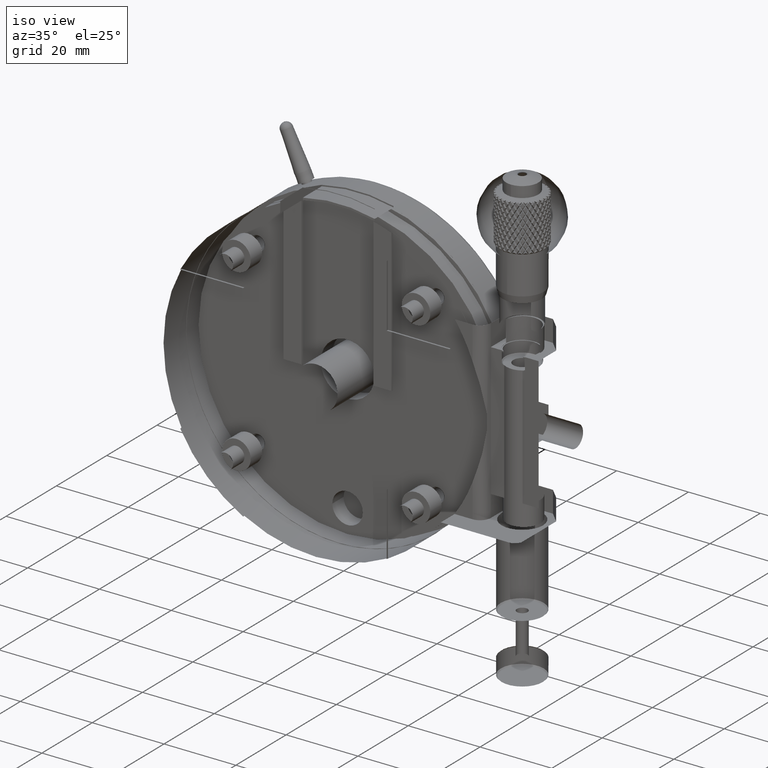
[diagram: clean part render]
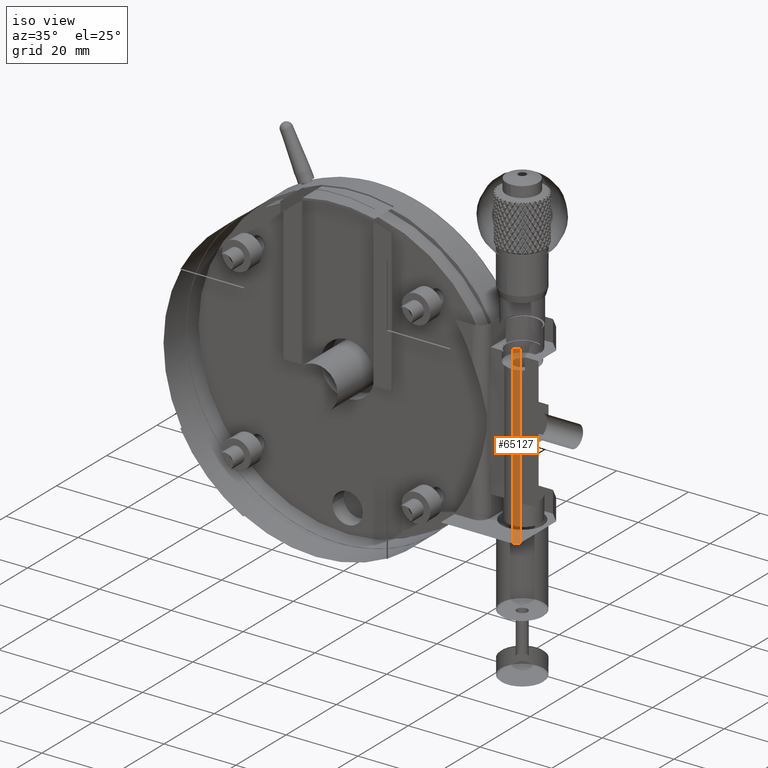
[diagram: same view with one face highlighted and labeled with its STEP entity id]
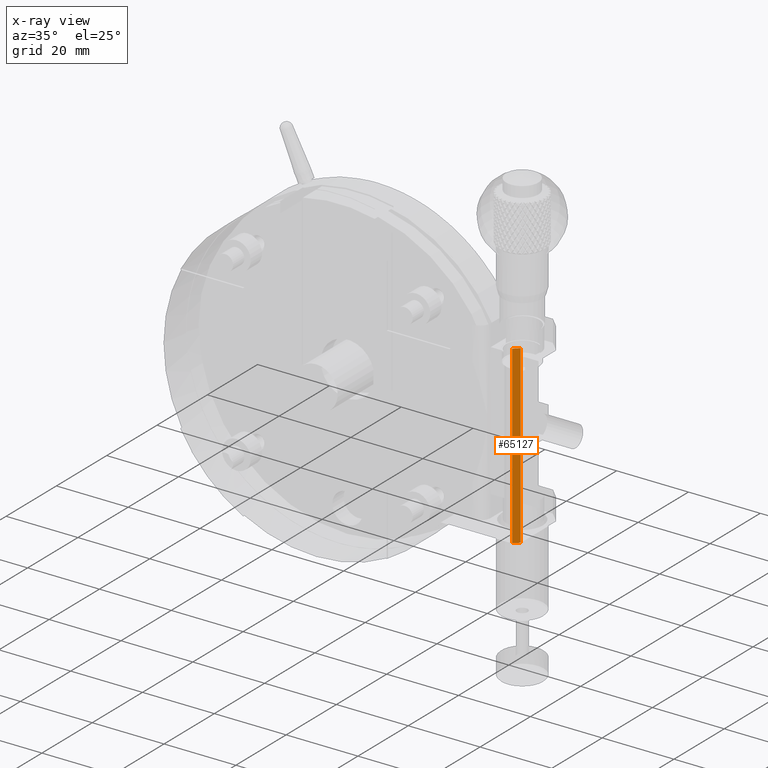
[diagram: x-ray of the same camera — body ghosted, the highlighted face saturated]
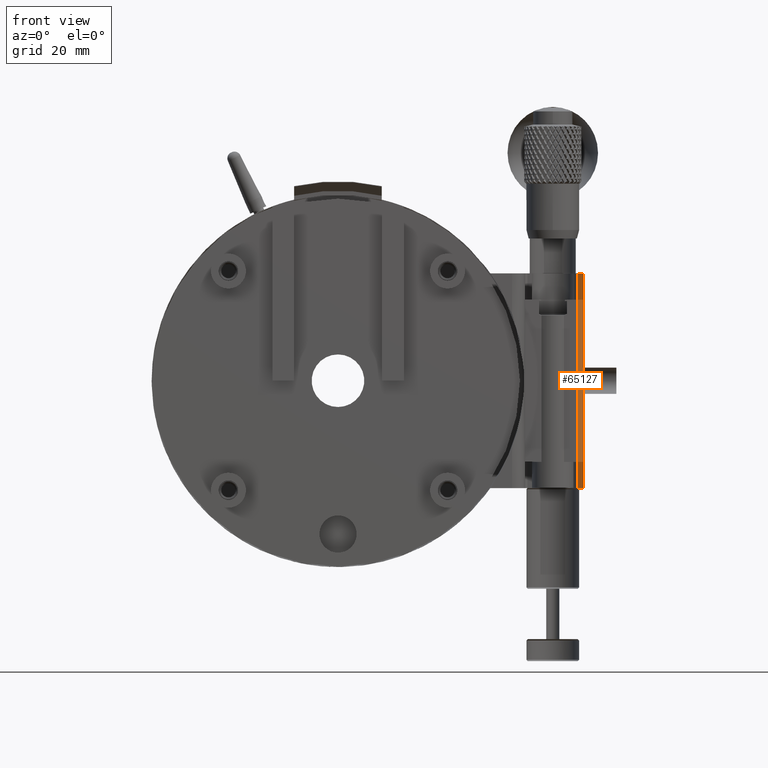
[diagram: same view with one face highlighted and labeled with its STEP entity id]
A machine part, iso view. The second image highlights one B-rep face of the part: STEP entity #65127.
The next image is the same camera in x-ray: the body ghosted, the highlighted face saturated — about 0% of this face is hidden behind the body in this view.
A second angle (front view) of the same face is appended — the face is thin or edge-on in the first view.
In plain terms, the highlighted planar face has unit normal (-0.7071, 0.7071, 0).
Its self-contained STEP definition (entity closure, byte-faithful):
#161 = FACE_OUTER_BOUND ( 'NONE', #7276, .T. ) ;
#2252 = LINE ( 'NONE', #48053, #13505 ) ;
#2660 = CARTESIAN_POINT ( 'NONE',  ( 54.58600000000000563, 0.5000000000000000000, 24.50000000000000000 ) ) ;
#7276 = EDGE_LOOP ( 'NONE', ( #26162, #11725, #54729, #39290 ) ) ;
#8564 = DIRECTION ( 'NONE',  ( 0.7071067811865473507, 0.7071067811865477948, 0.000000000000000000 ) ) ;
#8580 = CARTESIAN_POINT ( 'NONE',  ( 54.58600000000000563, 0.5000000000000000000, 24.50000000000000000 ) ) ;
#11202 = EDGE_CURVE ( 'NONE', #80130, #35731, #73778, .T. ) ;
#11725 = ORIENTED_EDGE ( 'NONE', *, *, #69231, .F. ) ;
#12422 = PLANE ( 'NONE',  #63093 ) ;
#12686 = CARTESIAN_POINT ( 'NONE',  ( 56.00000000000000000, 1.913999999999999924, 24.50000000000000355 ) ) ;
#13505 = VECTOR ( 'NONE', #8564, 1000.000000000000000 ) ;
#15758 = VECTOR ( 'NONE', #55676, 1000.000000000000000 ) ;
#17892 = CARTESIAN_POINT ( 'NONE',  ( 54.58600000000000563, 0.5000000000000000000, 24.50000000000000000 ) ) ;
#19156 = VECTOR ( 'NONE', #66232, 1000.000000000000000 ) ;
#22053 = DIRECTION ( 'NONE',  ( -0.000000000000000000, 0.000000000000000000, -1.000000000000000000 ) ) ;
#24624 = DIRECTION ( 'NONE',  ( -0.7071067811865480168, 0.7071067811865470176, 0.000000000000000000 ) ) ;
#26162 = ORIENTED_EDGE ( 'NONE', *, *, #39858, .T. ) ;
#34886 = EDGE_CURVE ( 'NONE', #80130, #57771, #42591, .T. ) ;
#35731 = VERTEX_POINT ( 'NONE', #12686 ) ;
#35908 = CARTESIAN_POINT ( 'NONE',  ( 56.00000000000000000, 1.914000000000000146, 24.50000000000000000 ) ) ;
#39290 = ORIENTED_EDGE ( 'NONE', *, *, #11202, .T. ) ;
#39858 = EDGE_CURVE ( 'NONE', #35731, #74235, #62809, .T. ) ;
#42591 = LINE ( 'NONE', #2660, #78609 ) ;
#46212 = CARTESIAN_POINT ( 'NONE',  ( 54.58600000000000563, 0.5000000000000000000, 24.50000000000000355 ) ) ;
#48053 = CARTESIAN_POINT ( 'NONE',  ( 54.58600000000000563, 0.5000000000000004441, -24.50000000000000000 ) ) ;
#54729 = ORIENTED_EDGE ( 'NONE', *, *, #34886, .F. ) ;
#55676 = DIRECTION ( 'NONE',  ( -0.000000000000000000, -0.000000000000000000, -1.000000000000000000 ) ) ;
#57771 = VERTEX_POINT ( 'NONE', #62469 ) ;
#62469 = CARTESIAN_POINT ( 'NONE',  ( 54.58600000000000563, 0.5000000000000001110, -24.50000000000000355 ) ) ;
#62809 = LINE ( 'NONE', #35908, #15758 ) ;
#63093 = AXIS2_PLACEMENT_3D ( 'NONE', #17892, #24624, #69606 ) ;
#65127 = ADVANCED_FACE ( 'NONE', ( #161 ), #12422, .T. ) ;
#66232 = DIRECTION ( 'NONE',  ( 0.7071067811865470176, 0.7071067811865480168, -0.000000000000000000 ) ) ;
#69231 = EDGE_CURVE ( 'NONE', #57771, #74235, #2252, .T. ) ;
#69606 = DIRECTION ( 'NONE',  ( -0.7071067811865470176, -0.7071067811865480168, 0.000000000000000000 ) ) ;
#73778 = LINE ( 'NONE', #8580, #19156 ) ;
#74235 = VERTEX_POINT ( 'NONE', #79535 ) ;
#78609 = VECTOR ( 'NONE', #22053, 1000.000000000000000 ) ;
#79535 = CARTESIAN_POINT ( 'NONE',  ( 56.00000000000000000, 1.913999999999999924, -24.50000000000000355 ) ) ;
#80130 = VERTEX_POINT ( 'NONE', #46212 ) ;